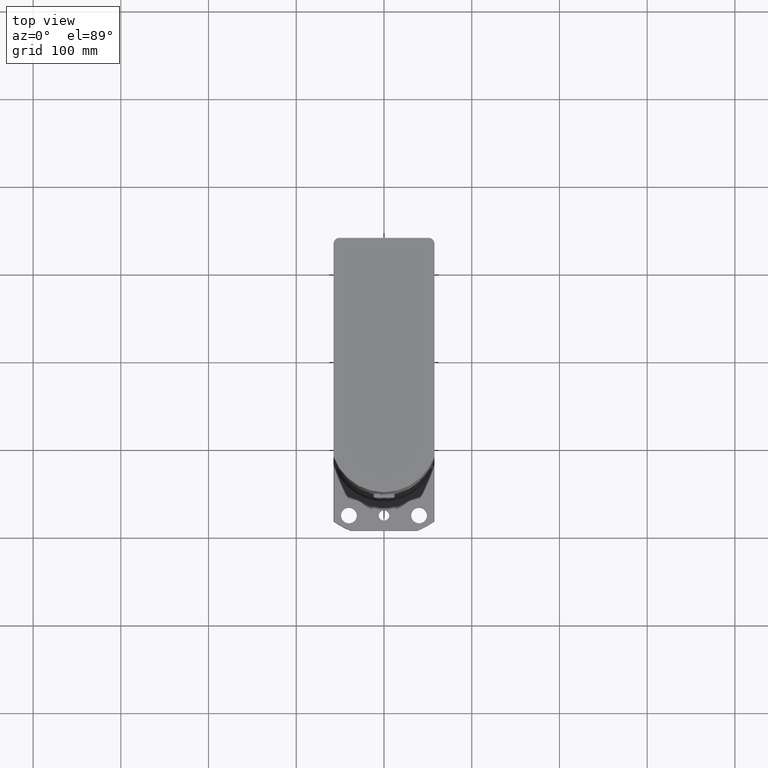
[diagram: clean part render]
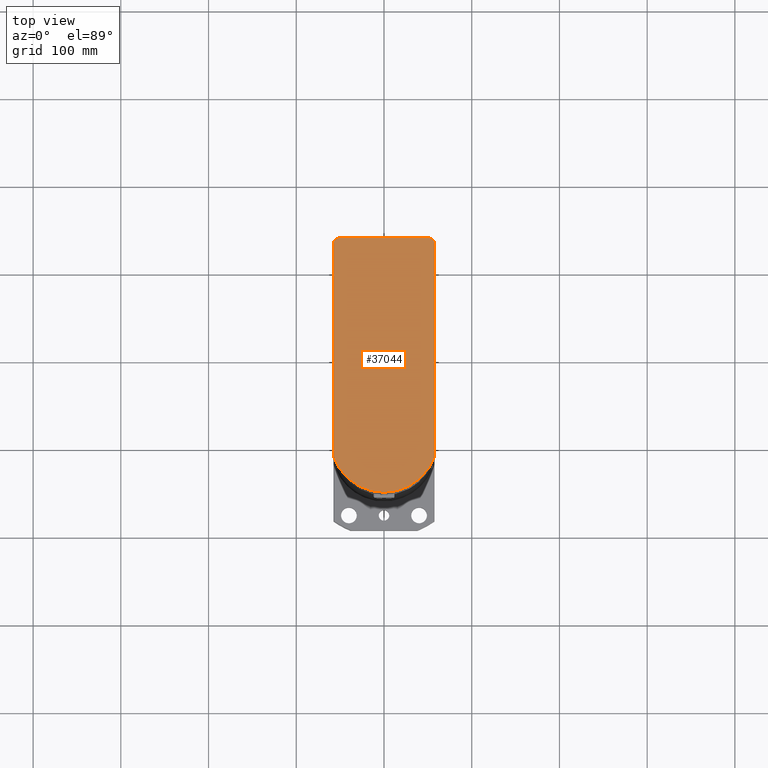
[diagram: same view with one face highlighted and labeled with its STEP entity id]
A machine part, top view. The second image highlights one B-rep face of the part: STEP entity #37044.
In plain terms, the highlighted planar face has unit normal (-0, 0, 1).
Its self-contained STEP definition (entity closure, byte-faithful):
#1613=PLANE('',#40529);
#3714=FACE_OUTER_BOUND('',#5786,.T.);
#5786=EDGE_LOOP('',(#31233,#31234,#31235,#31236,#31237,#31238));
#7720=CIRCLE('',#40530,61.0000000000002);
#7721=CIRCLE('',#40531,6.6);
#7722=CIRCLE('',#40532,6.6);
#10646=LINE('',#63163,#13413);
#10647=LINE('',#63167,#13414);
#10648=LINE('',#63171,#13415);
#13413=VECTOR('',#49957,10.);
#13414=VECTOR('',#49960,10.);
#13415=VECTOR('',#49963,10.);
#16609=VERTEX_POINT('',#63161);
#16610=VERTEX_POINT('',#63162);
#16611=VERTEX_POINT('',#63164);
#16612=VERTEX_POINT('',#63166);
#16613=VERTEX_POINT('',#63168);
#16614=VERTEX_POINT('',#63170);
#21625=EDGE_CURVE('',#16609,#16610,#10646,.T.);
#21626=EDGE_CURVE('',#16610,#16611,#7720,.T.);
#21627=EDGE_CURVE('',#16611,#16612,#10647,.T.);
#21628=EDGE_CURVE('',#16612,#16613,#7721,.T.);
#21629=EDGE_CURVE('',#16613,#16614,#10648,.T.);
#21630=EDGE_CURVE('',#16614,#16609,#7722,.T.);
#31233=ORIENTED_EDGE('',*,*,#21625,.T.);
#31234=ORIENTED_EDGE('',*,*,#21626,.T.);
#31235=ORIENTED_EDGE('',*,*,#21627,.T.);
#31236=ORIENTED_EDGE('',*,*,#21628,.T.);
#31237=ORIENTED_EDGE('',*,*,#21629,.T.);
#31238=ORIENTED_EDGE('',*,*,#21630,.T.);
#37044=ADVANCED_FACE('',(#3714),#1613,.T.);
#40529=AXIS2_PLACEMENT_3D('',#63160,#49955,#49956);
#40530=AXIS2_PLACEMENT_3D('',#63165,#49958,#49959);
#40531=AXIS2_PLACEMENT_3D('',#63169,#49961,#49962);
#40532=AXIS2_PLACEMENT_3D('',#63172,#49964,#49965);
#49955=DIRECTION('center_axis',(-4.27152203933185E-16,2.48976252555931E-15,
1.));
#49956=DIRECTION('ref_axis',(-5.63308073921624E-13,-1.,2.48976252555907E-15));
#49957=DIRECTION('',(-5.63308073921624E-13,-1.,2.48976252555907E-15));
#49958=DIRECTION('center_axis',(-4.27152203933185E-16,2.48976252555931E-15,
1.));
#49959=DIRECTION('ref_axis',(-0.94262295081985,-0.333859210727635,4.28586680761773E-16));
#49960=DIRECTION('',(5.77576563861647E-13,1.,-2.48976252555906E-15));
#49961=DIRECTION('center_axis',(-4.27152203933185E-16,2.48976252555931E-15,
1.));
#49962=DIRECTION('ref_axis',(1.,-6.18482793933298E-13,4.27152203934725E-16));
#49963=DIRECTION('',(-1.,5.58858457084226E-13,-4.27152203934577E-16));
#49964=DIRECTION('center_axis',(-4.27152203933185E-16,2.48976252555931E-15,
1.));
#49965=DIRECTION('ref_axis',(5.63308073921624E-13,1.,-2.48976252555907E-15));
#63160=CARTESIAN_POINT('Origin',(4.7441666454043E-11,98.7077890512661,732.00000000001));
#63161=CARTESIAN_POINT('',(-57.4999999998822,222.400000000165,732.00000000001));
#63162=CARTESIAN_POINT('',(-57.5000000000189,-20.3654118542548,732.00000000001));
#63163=CARTESIAN_POINT('',(-57.4999999998822,222.400000000165,732.00000000001));
#63164=CARTESIAN_POINT('',(57.4999999999772,-20.3654118543281,732.00000000001));
#63165=CARTESIAN_POINT('Origin',(-7.91957349329945E-12,1.31024080474162E-10,
732.00000000001));
#63166=CARTESIAN_POINT('',(57.5000000001174,222.4000000001,732.00000000001));
#63167=CARTESIAN_POINT('',(57.4999999999772,-20.3654118543281,732.00000000001));
#63168=CARTESIAN_POINT('',(50.9000000001212,229.000000000104,732.00000000001));
#63169=CARTESIAN_POINT('Origin',(50.9000000001174,222.400000000104,732.00000000001));
#63170=CARTESIAN_POINT('',(-50.8999999998786,229.000000000161,732.00000000001));
#63171=CARTESIAN_POINT('',(50.9000000001212,229.000000000104,732.00000000001));
#63172=CARTESIAN_POINT('Origin',(-50.8999999998823,222.400000000161,732.00000000001));